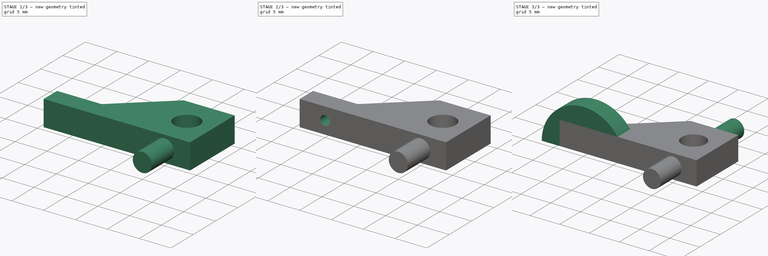
[diagram: build sequence overview — one tinted view per stage of 3, left to right]
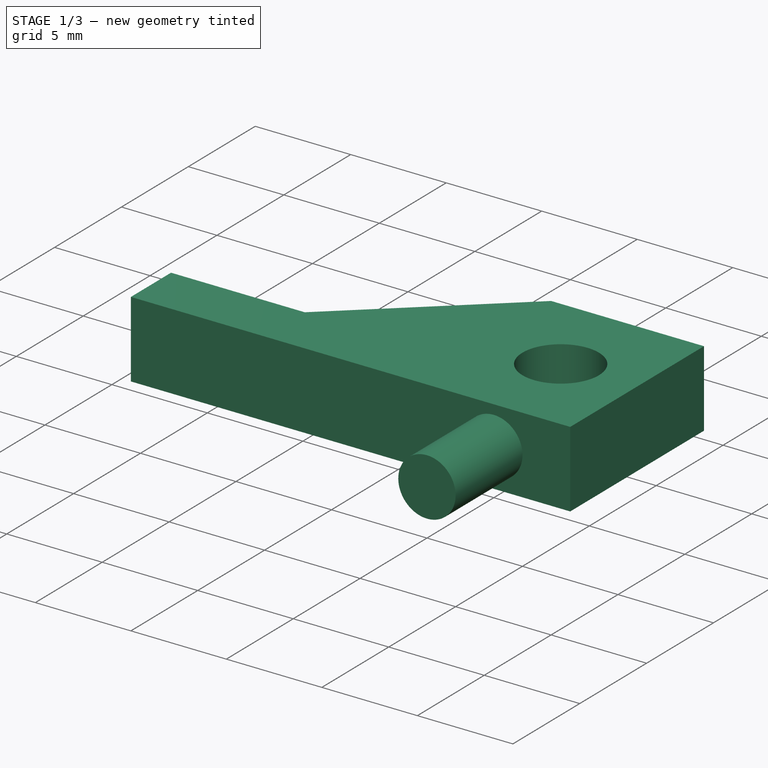
[diagram: stage 1 of 3 — iso view after this stage's code; geometry added in this stage tinted green]
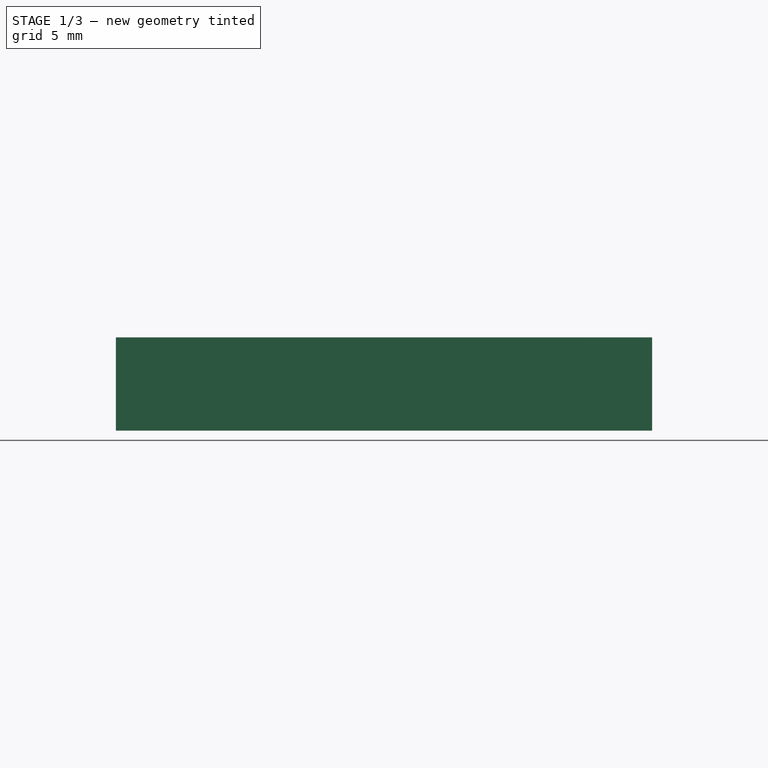
[diagram: stage 1 of 3 — front view after this stage's code; geometry added in this stage tinted green]
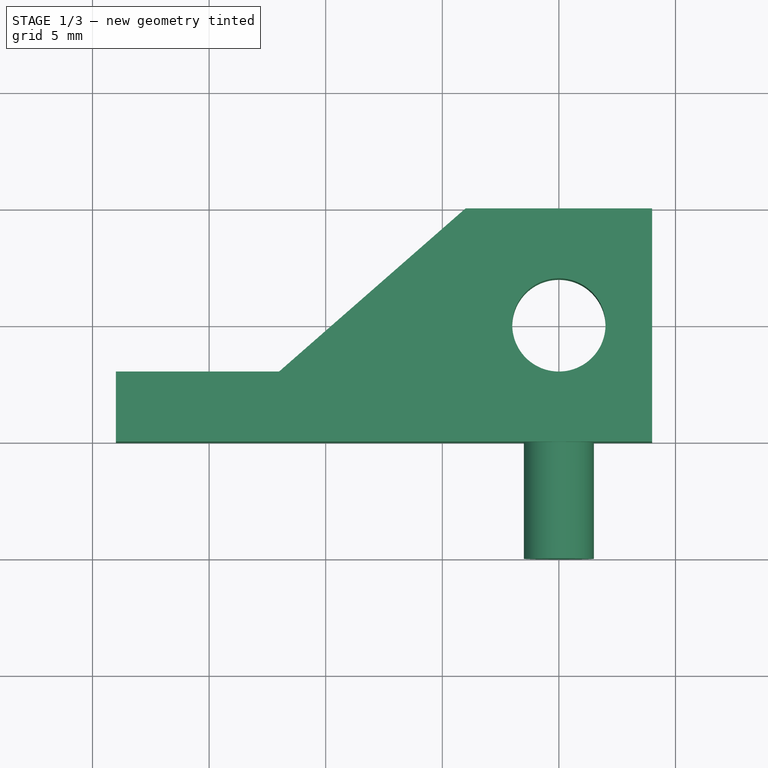
[diagram: stage 1 of 3 — top view after this stage's code; geometry added in this stage tinted green]
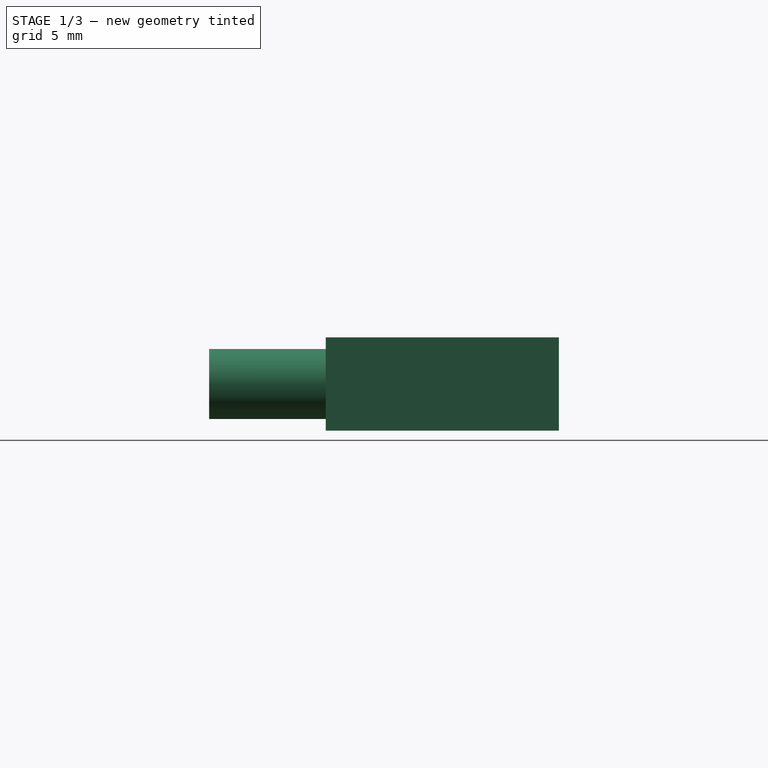
[diagram: stage 1 of 3 — right view after this stage's code; geometry added in this stage tinted green]
FCSTD DOCUMENT  (FreeCAD 0.20R29603 (Git))
Label: thesis cart wheel steering
License: All rights reserved
LicenseURL: http://en.wikipedia.org/wiki/All_rights_reserved
objects: Sketcher::SketchObject×3, Part::Extrusion×2, PartDesign::FeatureBase×1, PartDesign::Hole×1, PartDesign::Line×1, PartDesign::Revolution×1, PartDesign::Body×1, Part::Cylinder×1, Part::Mirroring×1, Part::MultiFuse×1
note: 15 computed .brp shape members not serialized (recipe doc carries the construction recipe); baked Part::Feature solids carry a one-line shape summary decoded from their .brp

FEATURE [Sketcher::SketchObject] Sketch  label="Base sketch"
  FullyConstrained = true
  MapMode = 5
  Support = -> [XY_Plane]
  sketch-geometry (12):
    g0: LineSegment StartX=-4 StartY=-5 StartZ=0 EndX=-4 EndY=5 EndZ=0
    g1: LineSegment StartX=-4 StartY=5 StartZ=0 EndX=4 EndY=5 EndZ=0
    g2: LineSegment StartX=4 StartY=5 StartZ=0 EndX=4 EndY=-5 EndZ=0
    g3: LineSegment StartX=4 StartY=-5 StartZ=0 EndX=-4 EndY=-5 EndZ=0
    g4: GeomPoint X=0 Y=0 Z=0
    g5: Circle CenterX=0 CenterY=0 CenterZ=0 NormalX=0 NormalY=0 NormalZ=1 AngleXU=0 Radius=2
    g6: LineSegment StartX=-4 StartY=-5 StartZ=0 EndX=-19 EndY=-5 EndZ=0
    g7: LineSegment StartX=-19 StartY=-5 StartZ=0 EndX=-19 EndY=-2 EndZ=0
    g8: LineSegment StartX=-19 StartY=-2 StartZ=0 EndX=-4 EndY=-2 EndZ=0
    g9: LineSegment StartX=-4 StartY=-2 StartZ=0 EndX=-4 EndY=-5 EndZ=0
    g10: LineSegment StartX=-12 StartY=-2 StartZ=0 EndX=-4 EndY=5 EndZ=0
    g11: LineSegment StartX=-19 StartY=-2 StartZ=0 EndX=-12 EndY=-2 EndZ=0
  constraints (30):
    c: Coincident(g0,g1)
    c: Coincident(g1,g2)
    c: Coincident(g2,g3)
    c: Coincident(g3,g0)
    c: Horizontal(g1)
    c: Horizontal(g3)
    c: Vertical(g0)
    c: Vertical(g2)
    c: Symmetric(g1,g0,g4)
    c: Coincident(g4,g-1)
    c: DistanceY(g2,g2) = 10
    c: DistanceX(g1,g1) = 8
    c: Coincident(g5,g4)
    c: Coincident(g6,g7)
    c: Coincident(g7,g8)
    c: Coincident(g8,g9)
    c: Coincident(g9,g6)
    c: Horizontal(g6)
    c: Horizontal(g8)
    c: Vertical(g7)
    c: Vertical(g9)
    c: Coincident(g6,g0)
    c: DistanceY(g7,g5) = 2
    c: Diameter(g5) = 4
    c: PointOnObject(g10,g8)
    c: Coincident(g10,g0)
    c: DistanceX(g7,g10) = 7
    c: Coincident(g11,g7)
    c: Coincident(g11,g10)
    c: DistanceX(g6,g5) = 19
FEATURE [Part::Extrusion] Extrude
  Base = -> Sketch
  Dir = (0,0,1)
  DirMode = 2
  FaceMakerClass = Part::FaceMakerBullseye
  LengthFwd = 4
  LengthRev = 0
  Solid = true
  Symmetric = true
FEATURE [PartDesign::Body] Body
  BaseFeature = -> Extrude
  Group = -> [BaseFeature,Sketch,Sketch001,Hole,DatumLine,Sketch002,Revolution]
  Origin = -> Origin
  Tip = -> Revolution
FEATURE [Part::Cylinder] Cylinder
  Angle = 360
  AttacherType = Attacher::AttachEngine3D
  FirstAngle = 0
  Height = 5
  Placement = pos=(0,10,0) rot=(1,0,0;1.5708rad)
  Radius = 1.5
  SecondAngle = 0
FEATURE [Part::Mirroring] Part__Mirroring  label="Cylinder (Mirror #1)"
  Base = (0,0,0)
  Normal = (0,1,0)
  Source = -> Cylinder
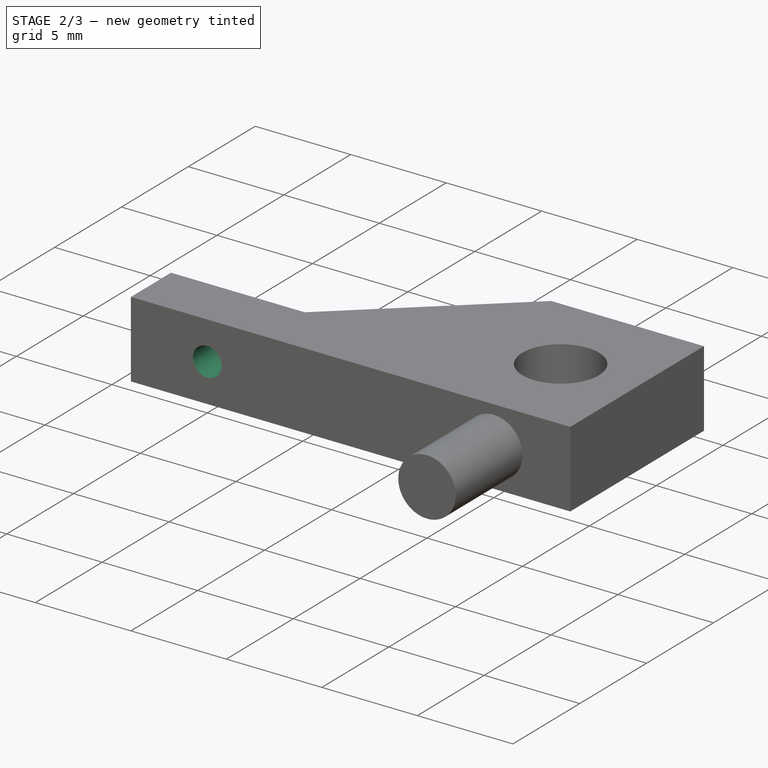
[diagram: stage 2 of 3 — iso view after this stage's code; geometry added in this stage tinted green]
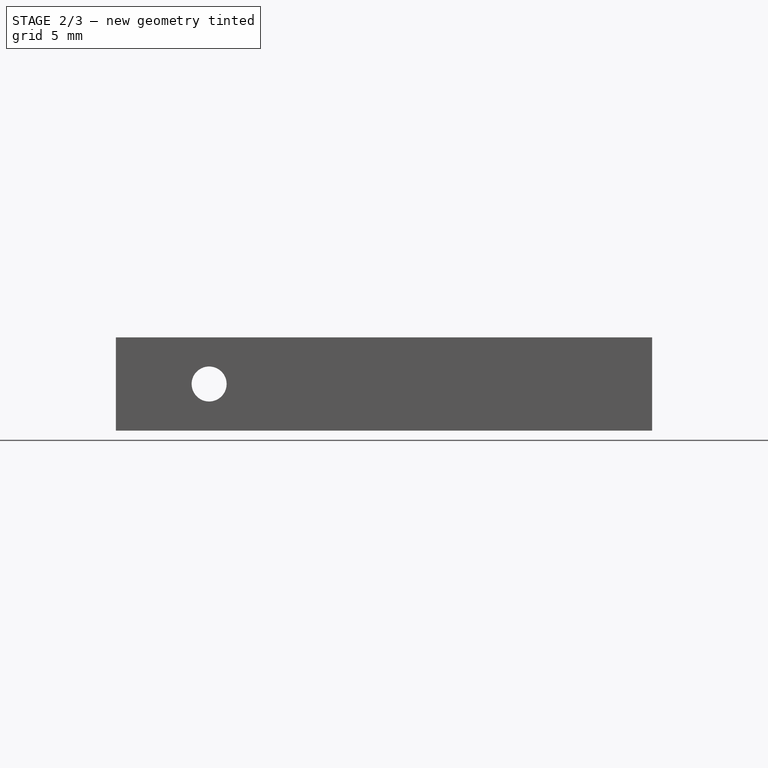
[diagram: stage 2 of 3 — front view after this stage's code; geometry added in this stage tinted green]
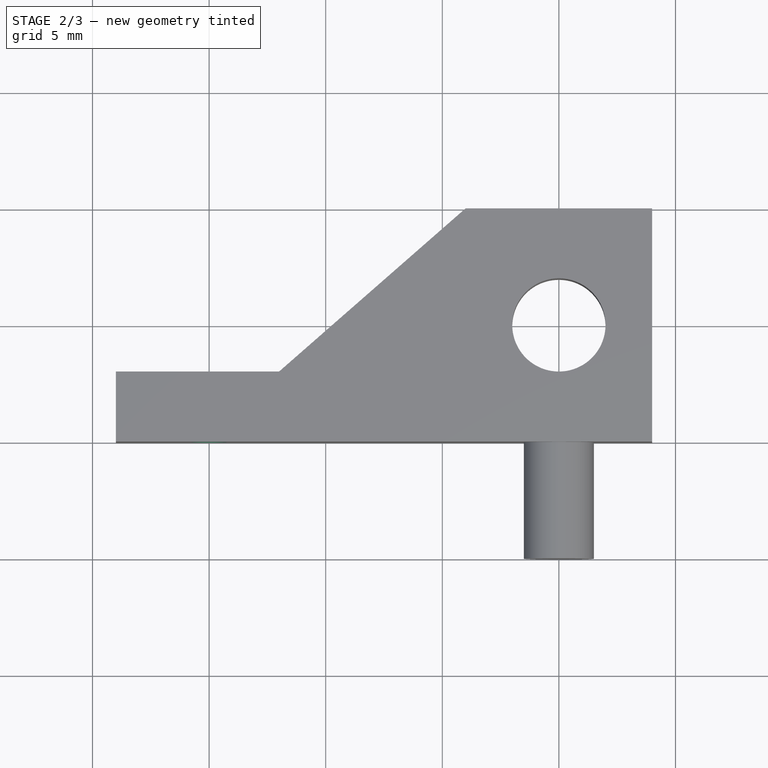
[diagram: stage 2 of 3 — top view after this stage's code; geometry added in this stage tinted green]
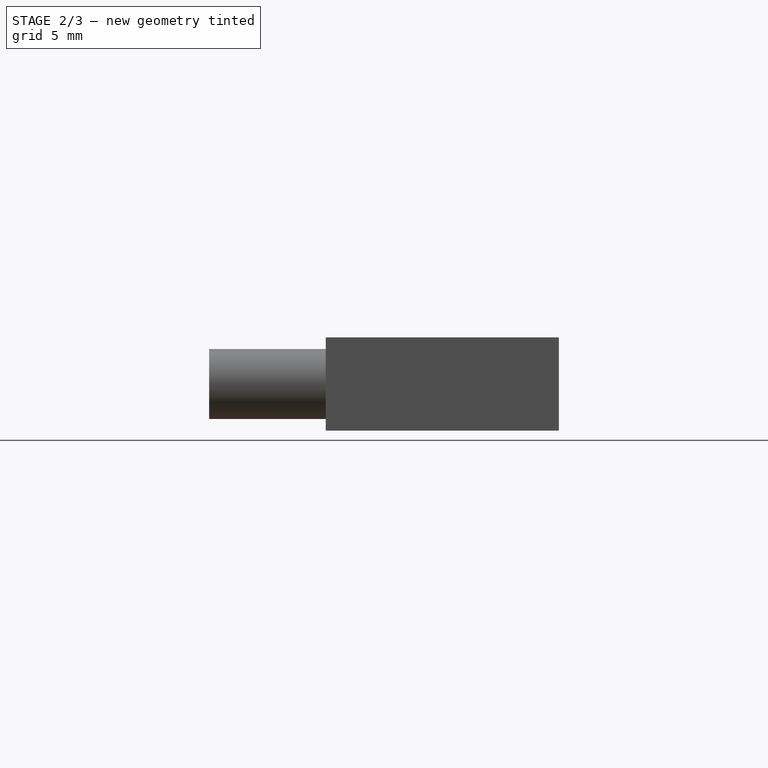
[diagram: stage 2 of 3 — right view after this stage's code; geometry added in this stage tinted green]
FEATURE [Sketcher::SketchObject] Sketch001  label="Hole sketch"
  FullyConstrained = true
  MapMode = 5
  Placement = pos=(0,-2,0) rot=(0,0.707107,0.707107;3.14159rad)
  Support = -> [Extrude]
  sketch-geometry (2):
    g0: Circle CenterX=15 CenterY=0 CenterZ=0 NormalX=0 NormalY=0 NormalZ=1 AngleXU=0 Radius=0.5
    g1: GeomPoint X=0 Y=0 Z=0
  constraints (4):
    c: PointOnObject(g0,g-1)
    c: Coincident(g1,g-1)
    c: DistanceX(g1,g0) = 15
    c: Diameter(g0) = 1
FEATURE [PartDesign::FeatureBase] BaseFeature
  BaseFeature = -> Extrude
FEATURE [PartDesign::Hole] Hole
  BaseFeature = -> BaseFeature
  CustomThreadClearance = 0
  Depth = 47.6737
  DepthType = 1
  Diameter = 1.5
  DrillForDepth = false
  DrillPoint = 0
  DrillPointAngle = 118
  HoleCutCountersinkAngle = 90
  HoleCutCustomValues = false
  HoleCutDepth = 0
  HoleCutDiameter = 6.1
  HoleCutType = 0
  ModelThread = false
  Profile = -> Sketch001
  Tapered = false
  TaperedAngle = 90
  ThreadClass = 0
  ThreadDepth = 47.6737
  ThreadDepthType = 0
  ThreadDirection = 0
  ThreadFit = 0
  ThreadSize = 0
  ThreadType = 0
  Threaded = false
  UseCustomThreadClearance = false
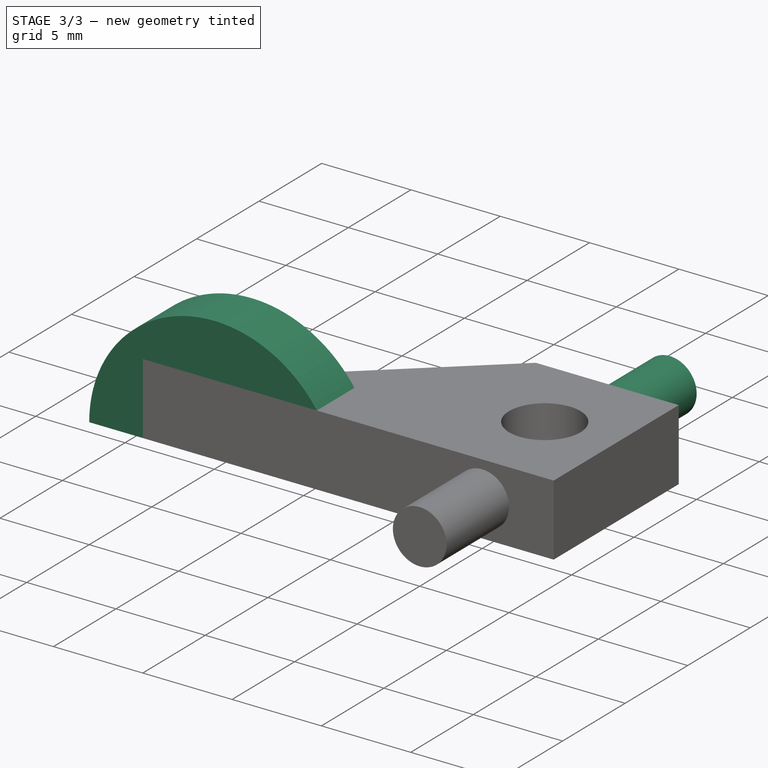
[diagram: stage 3 of 3 — iso view after this stage's code; geometry added in this stage tinted green]
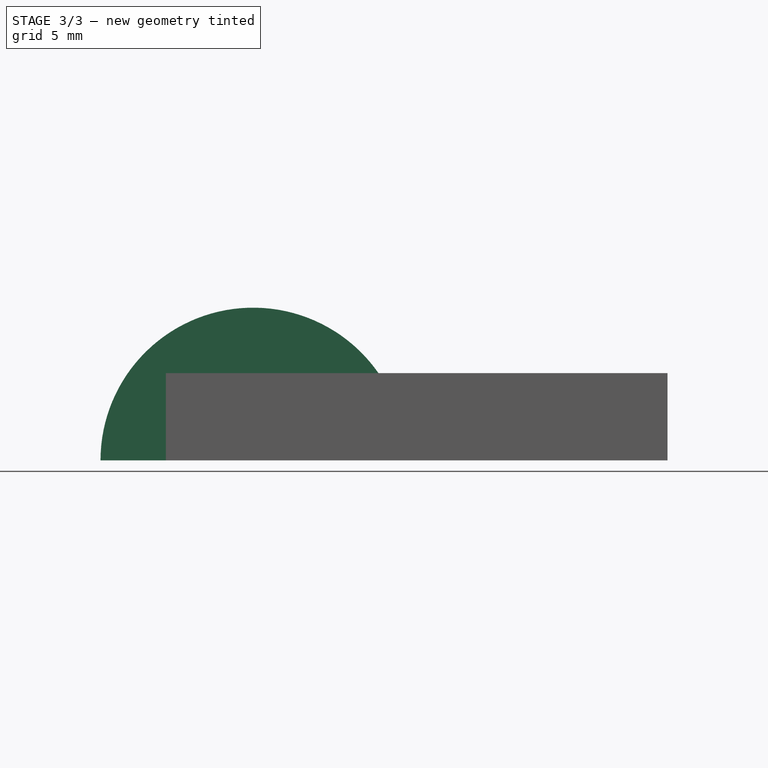
[diagram: stage 3 of 3 — front view after this stage's code; geometry added in this stage tinted green]
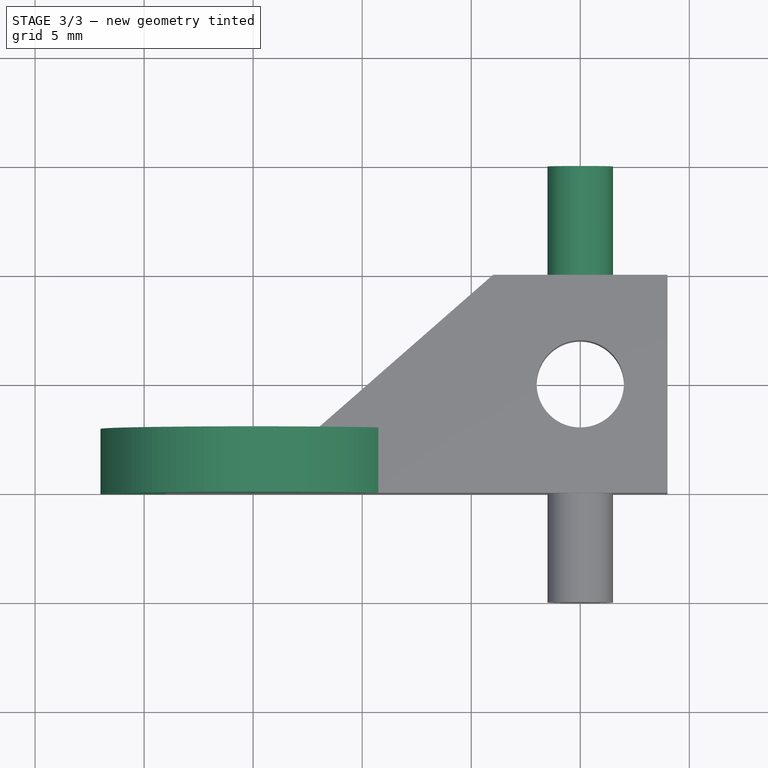
[diagram: stage 3 of 3 — top view after this stage's code; geometry added in this stage tinted green]
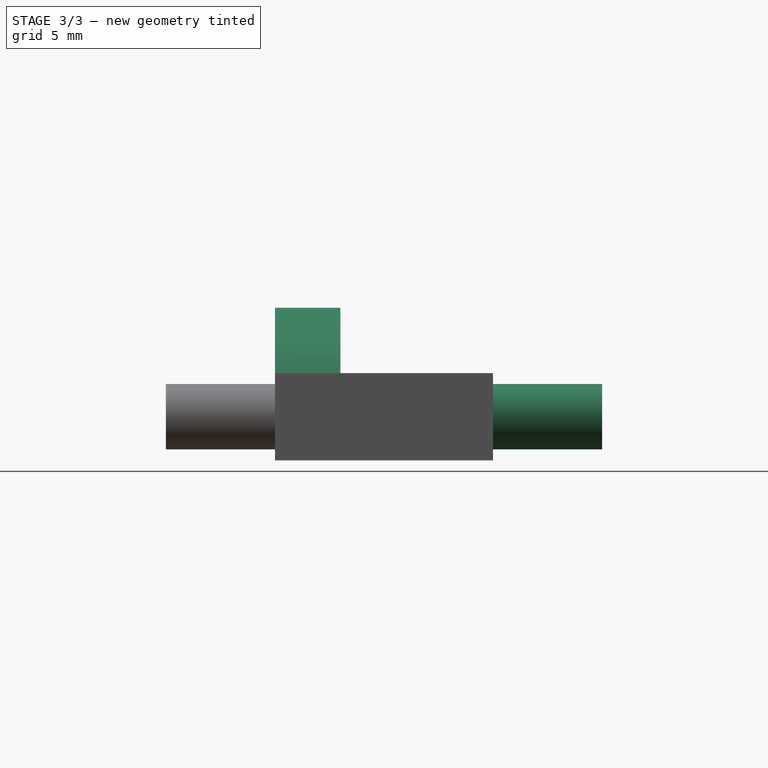
[diagram: stage 3 of 3 — right view after this stage's code; geometry added in this stage tinted green]
FEATURE [Part::Extrusion] Extrude001
  Base = -> Sketch
  Dir = (0,0,1)
  DirMode = 2
  FaceMakerClass = Part::FaceMakerBullseye
  LengthFwd = 4
  LengthRev = 0
  Solid = true
  Symmetric = true
FEATURE [PartDesign::Line] DatumLine  label="Revolution Line"
  AttacherType = Attacher::AttachEngineLine
  AttachmentOffset = pos=(0,-2,0) rot=(0,0,1;0rad)
  Length = 20
  MapMode = 19
  Placement = pos=(-15,-5,-2) rot=(1,0,0;1.5708rad)
  ResizeMode = 0
  Support = -> [Hole]
FEATURE [Sketcher::SketchObject] Sketch002  label="Revolution sketch"
  FullyConstrained = true
  MapMode = 5
  Placement = pos=(0,0,-2) rot=(1,0,0;3.14159rad)
  Support = -> [Hole]
  sketch-geometry (4):
    g0: LineSegment StartX=-19 StartY=2 StartZ=0 EndX=-22 EndY=2 EndZ=0
    g1: LineSegment StartX=-22 StartY=2 StartZ=0 EndX=-22 EndY=5 EndZ=0
    g2: LineSegment StartX=-22 StartY=5 StartZ=0 EndX=-19 EndY=5 EndZ=0
    g3: LineSegment StartX=-19 StartY=5 StartZ=0 EndX=-19 EndY=2 EndZ=0
  constraints (12):
    c: Coincident(g0,g1)
    c: Coincident(g1,g2)
    c: Coincident(g2,g3)
    c: Coincident(g3,g0)
    c: Horizontal(g0)
    c: Horizontal(g2)
    c: Vertical(g1)
    c: Vertical(g3)
    c: DistanceY(g3,g3) = 3
    c: DistanceY(g-1,g0) = 2
    c: DistanceX(g0,g-1) = 19
    c: DistanceX(g0,g0) = 3
FEATURE [PartDesign::Revolution] Revolution
  Angle = 180
  Axis = (0,-1,3e-16)
  Base = (-15,-5,-2)
  BaseFeature = -> Hole
  Profile = -> Sketch002
  ReferenceAxis = -> DatumLine
  Reversed = true
FEATURE [Part::MultiFuse] Fusion
  Shapes = -> [Part__Mirroring,Revolution,Cylinder]
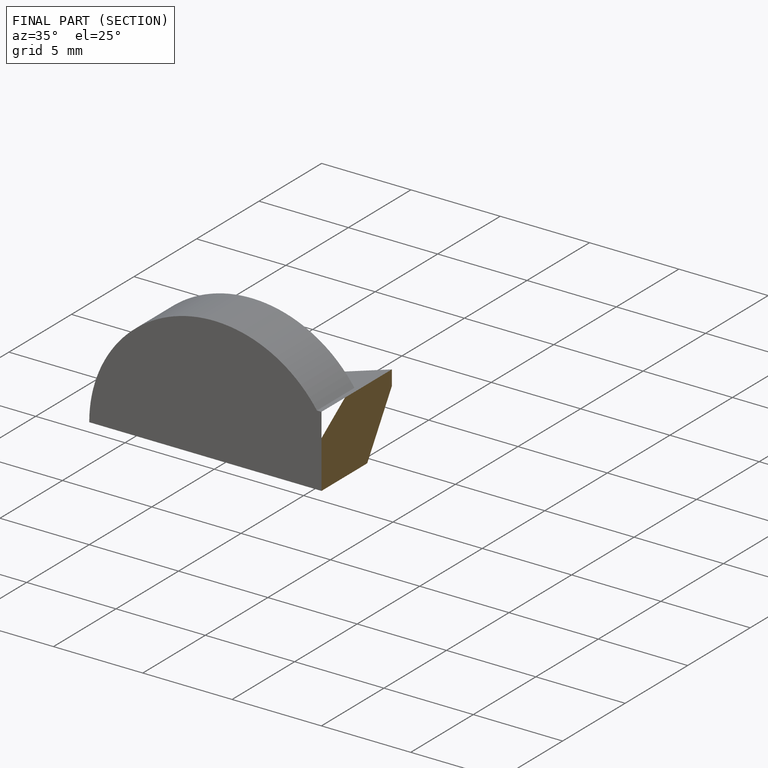
[diagram: finished part — half-section view (interior)]
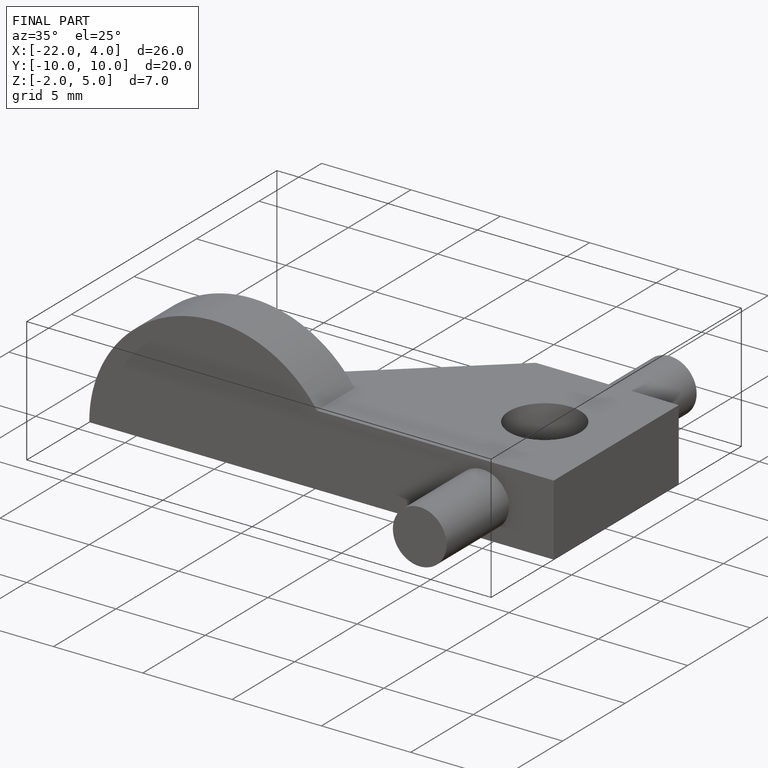
[diagram: finished part — iso view with bounding-box wireframe]
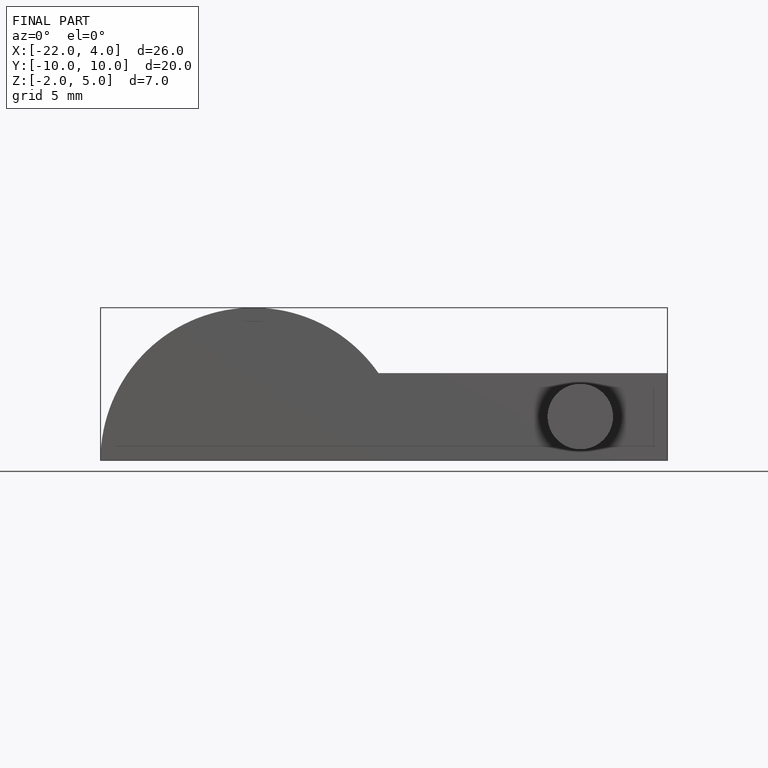
[diagram: finished part — front view with bounding-box wireframe]
